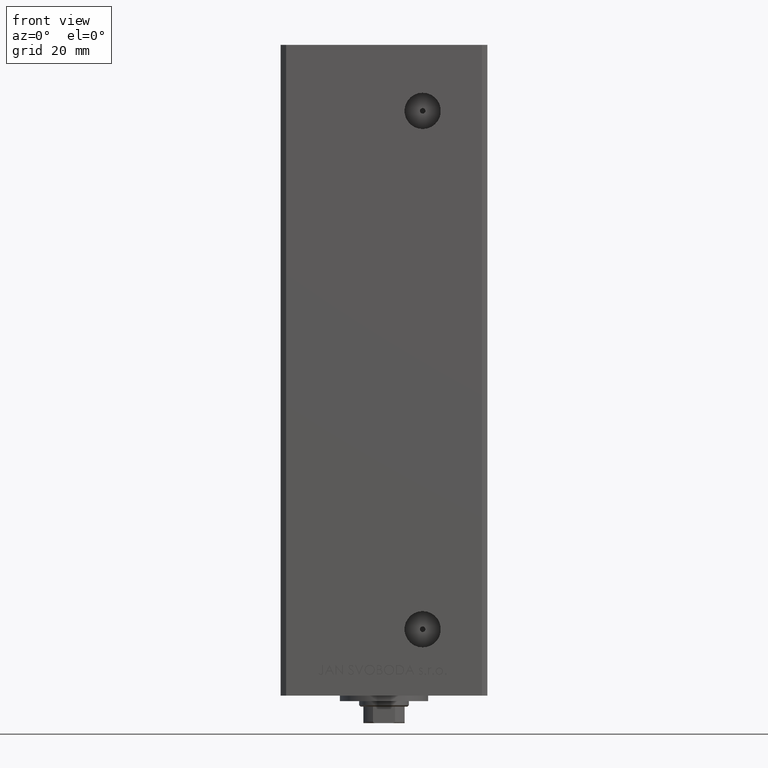
[diagram: clean part render]
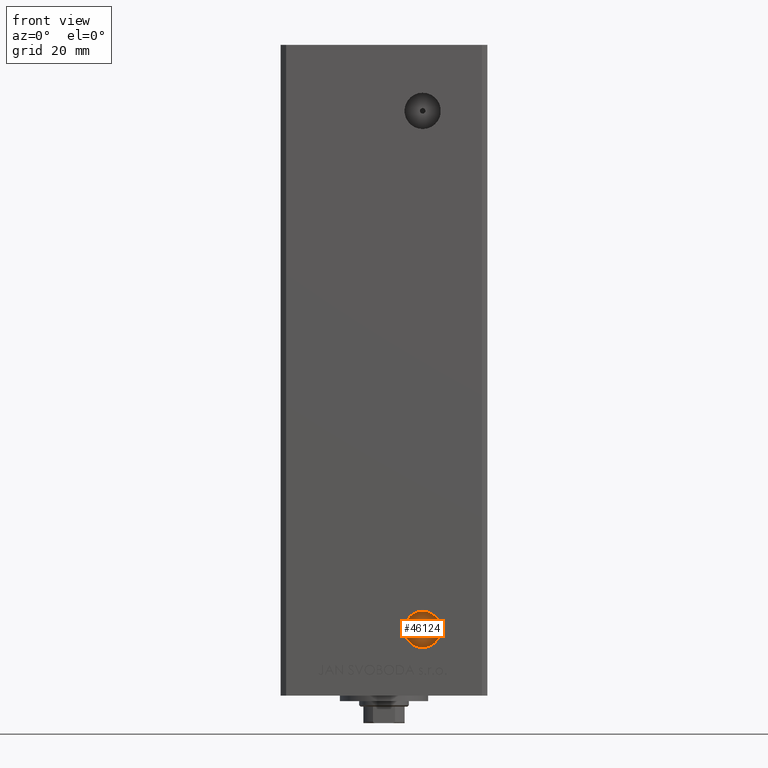
[diagram: same view with one face highlighted and labeled with its STEP entity id]
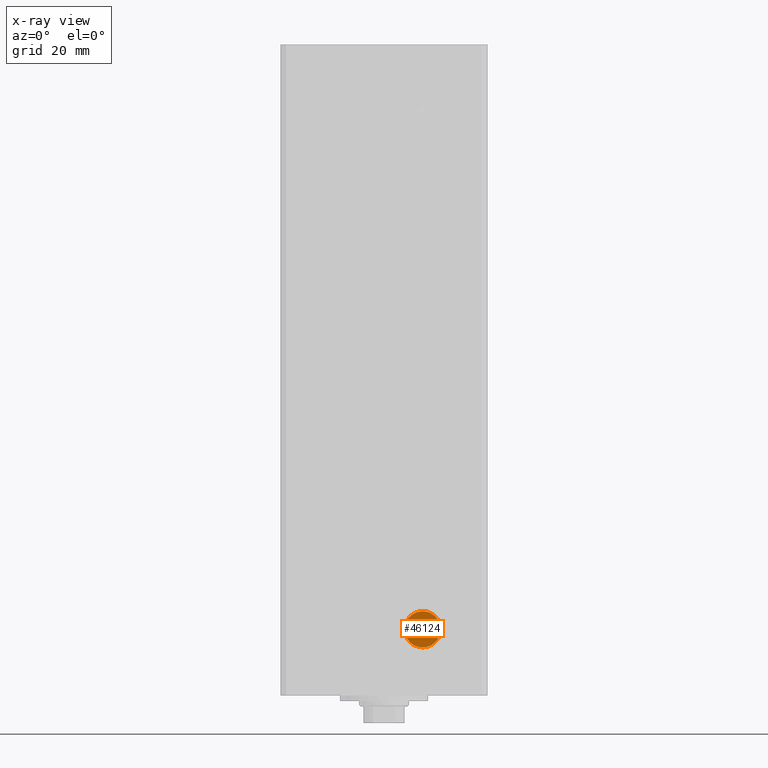
[diagram: x-ray of the same camera — body ghosted, the highlighted face saturated]
A machine part, front view. The second image highlights one B-rep face of the part: STEP entity #46124.
The next image is the same camera in x-ray: the body ghosted, the highlighted face saturated — about 0% of this face is hidden behind the body in this view.
In plain terms, the highlighted planar face has unit normal (0, -1, 0).
Its self-contained STEP definition (entity closure, byte-faithful):
#855 = FACE_BOUND ( 'NONE', #48201, .T. ) ;
#870 = AXIS2_PLACEMENT_3D ( 'NONE', #12102, #30975, #27441 ) ;
#900 = CIRCLE ( 'NONE', #32953, 6.579999999999998295 ) ;
#1030 = VERTEX_POINT ( 'NONE', #29739 ) ;
#1127 = EDGE_CURVE ( 'NONE', #49118, #18146, #33787, .T. ) ;
#2256 = VERTEX_POINT ( 'NONE', #39176 ) ;
#4374 = AXIS2_PLACEMENT_3D ( 'NONE', #43074, #10062, #8640 ) ;
#5561 = DIRECTION ( 'NONE',  ( 0.000000000000000000, 0.000000000000000000, -1.000000000000000000 ) ) ;
#8640 = DIRECTION ( 'NONE',  ( 0.000000000000000000, -0.000000000000000000, -1.000000000000000000 ) ) ;
#10062 = DIRECTION ( 'NONE',  ( 0.000000000000000000, -1.000000000000000000, 0.000000000000000000 ) ) ;
#12102 = CARTESIAN_POINT ( 'NONE',  ( 13.99999999999999112, -19.50000000000000355, 9.000000000000007105 ) ) ;
#12867 = ORIENTED_EDGE ( 'NONE', *, *, #1127, .F. ) ;
#13628 = DIRECTION ( 'NONE',  ( 0.000000000000000000, -1.000000000000000000, 0.000000000000000000 ) ) ;
#15422 = DIRECTION ( 'NONE',  ( 0.000000000000000000, 0.000000000000000000, -1.000000000000000000 ) ) ;
#15730 = ORIENTED_EDGE ( 'NONE', *, *, #21322, .T. ) ;
#15999 = CARTESIAN_POINT ( 'NONE',  ( 13.99999999999999112, -19.50000000000000355, 10.00000000000000888 ) ) ;
#16164 = PLANE ( 'NONE',  #4374 ) ;
#17577 = CARTESIAN_POINT ( 'NONE',  ( 13.99999999999999112, -19.50000000000000355, 9.000000000000007105 ) ) ;
#18146 = VERTEX_POINT ( 'NONE', #15999 ) ;
#18693 = DIRECTION ( 'NONE',  ( 0.000000000000000000, -1.000000000000000000, 0.000000000000000000 ) ) ;
#21322 = EDGE_CURVE ( 'NONE', #1030, #2256, #44517, .T. ) ;
#21918 = CARTESIAN_POINT ( 'NONE',  ( 13.99999999999999112, -19.50000000000000355, 8.000000000000007105 ) ) ;
#24937 = CARTESIAN_POINT ( 'NONE',  ( 13.99999999999999112, -19.50000000000000355, 9.000000000000007105 ) ) ;
#27441 = DIRECTION ( 'NONE',  ( 0.000000000000000000, 0.000000000000000000, -1.000000000000000000 ) ) ;
#29739 = CARTESIAN_POINT ( 'NONE',  ( 13.99999999999999112, -19.50000000000000355, 15.58000000000000718 ) ) ;
#30975 = DIRECTION ( 'NONE',  ( 0.000000000000000000, -1.000000000000000000, 0.000000000000000000 ) ) ;
#32914 = DIRECTION ( 'NONE',  ( 0.000000000000000000, -1.000000000000000000, 0.000000000000000000 ) ) ;
#32953 = AXIS2_PLACEMENT_3D ( 'NONE', #24937, #13628, #40276 ) ;
#33633 = EDGE_CURVE ( 'NONE', #2256, #1030, #900, .T. ) ;
#33787 = CIRCLE ( 'NONE', #870, 1.000000000000000888 ) ;
#34529 = CARTESIAN_POINT ( 'NONE',  ( 13.99999999999999112, -19.50000000000000355, 9.000000000000007105 ) ) ;
#36379 = EDGE_LOOP ( 'NONE', ( #43055, #15730 ) ) ;
#38023 = CIRCLE ( 'NONE', #46850, 1.000000000000000888 ) ;
#39176 = CARTESIAN_POINT ( 'NONE',  ( 13.99999999999999112, -19.50000000000000355, 2.420000000000009699 ) ) ;
#40276 = DIRECTION ( 'NONE',  ( 0.000000000000000000, 0.000000000000000000, -1.000000000000000000 ) ) ;
#40589 = ORIENTED_EDGE ( 'NONE', *, *, #43729, .F. ) ;
#43055 = ORIENTED_EDGE ( 'NONE', *, *, #33633, .T. ) ;
#43074 = CARTESIAN_POINT ( 'NONE',  ( 13.99999999999999112, -19.50000000000000355, 9.000000000000007105 ) ) ;
#43320 = FACE_OUTER_BOUND ( 'NONE', #36379, .T. ) ;
#43729 = EDGE_CURVE ( 'NONE', #18146, #49118, #38023, .T. ) ;
#44517 = CIRCLE ( 'NONE', #46800, 6.579999999999998295 ) ;
#46124 = ADVANCED_FACE ( 'NONE', ( #855, #43320 ), #16164, .T. ) ;
#46800 = AXIS2_PLACEMENT_3D ( 'NONE', #17577, #32914, #5561 ) ;
#46850 = AXIS2_PLACEMENT_3D ( 'NONE', #34529, #18693, #15422 ) ;
#48201 = EDGE_LOOP ( 'NONE', ( #12867, #40589 ) ) ;
#49118 = VERTEX_POINT ( 'NONE', #21918 ) ;